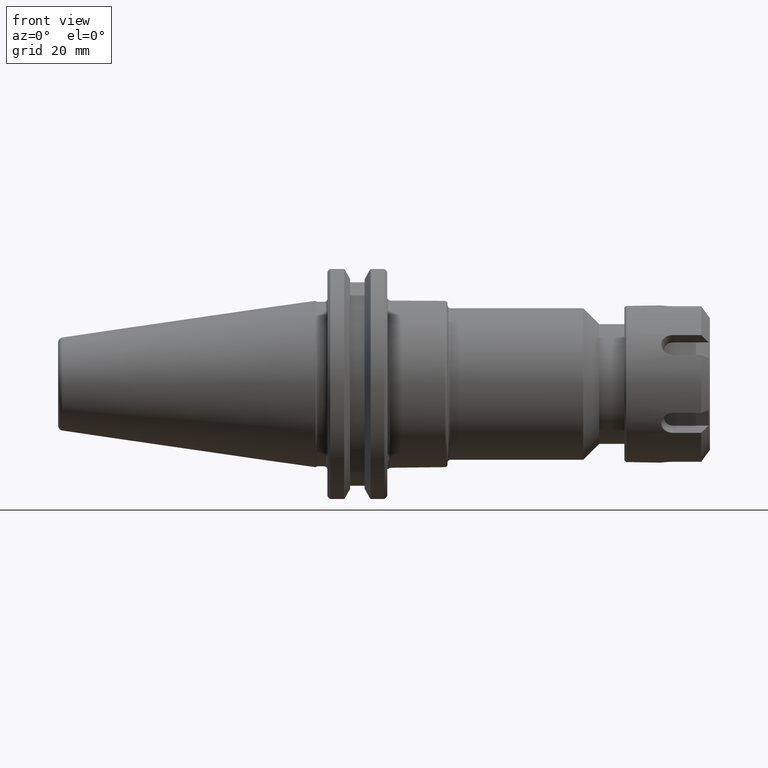
[diagram: clean part render]
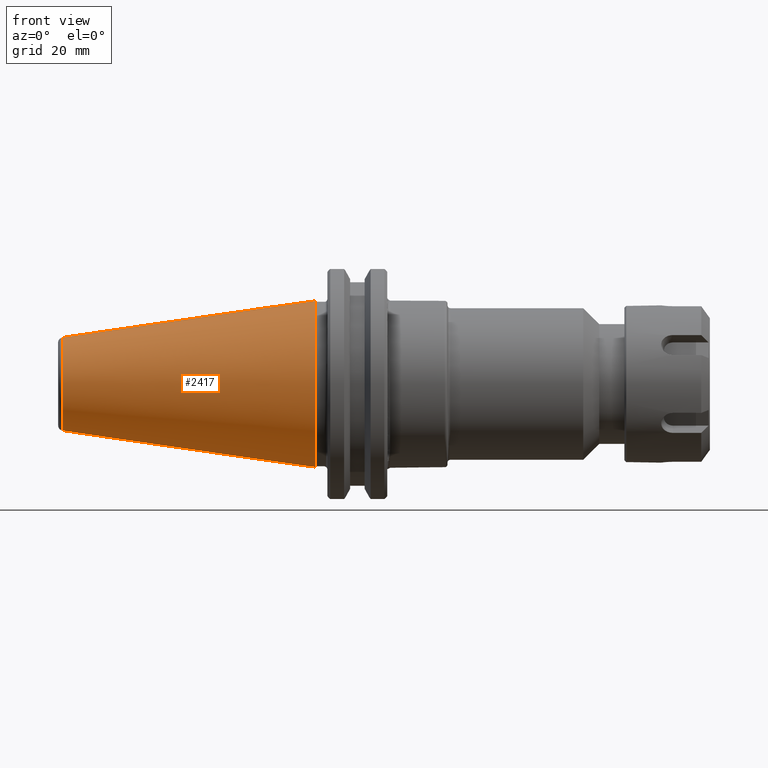
[diagram: same view with one face highlighted and labeled with its STEP entity id]
A machine part, front view. The second image highlights one B-rep face of the part: STEP entity #2417.
In plain terms, the highlighted conical surface has half-angle 8.297 deg.
Its self-contained STEP definition (entity closure, byte-faithful):
#874=CARTESIAN_POINT('',(0.0,0.875,0.0));
#875=VERTEX_POINT('',#874);
#876=CARTESIAN_POINT('',(0.0,0.0,0.0));
#877=DIRECTION('',(1.0,1.624514E-013,0.0));
#878=DIRECTION('',(-1.624514E-013,1.0,0.0));
#879=AXIS2_PLACEMENT_3D('',#876,#877,#878);
#880=CIRCLE('',#879,0.875);
#881=EDGE_CURVE('',#875,#875,#880,.T.);
#2382=CARTESIAN_POINT('',(-2.641292437025116,0.489818344728471,-1.199709E-016));
#2383=VERTEX_POINT('',#2382);
#2384=CARTESIAN_POINT('',(-2.641292437025114,1.136449E-014,-5.998545E-017));
#2385=DIRECTION('',(-1.0,0.0,0.0));
#2386=DIRECTION('',(0.0,-1.0,0.0));
#2387=AXIS2_PLACEMENT_3D('',#2384,#2385,#2386);
#2388=CIRCLE('',#2387,0.48981834472846);
#2389=EDGE_CURVE('',#2383,#2383,#2388,.T.);
#2406=CARTESIAN_POINT('',(-1.34375,0.0,0.0));
#2407=DIRECTION('',(1.0,0.0,0.0));
#2408=DIRECTION('',(-1.624514E-013,1.0,0.0));
#2409=AXIS2_PLACEMENT_3D('',#2406,#2407,#2408);
#2410=CONICAL_SURFACE('',#2409,0.67903993059773,8.296999999999994);
#2411=ORIENTED_EDGE('',*,*,#881,.F.);
#2412=EDGE_LOOP('',(#2411));
#2413=FACE_OUTER_BOUND('',#2412,.T.);
#2414=ORIENTED_EDGE('',*,*,#2389,.F.);
#2415=EDGE_LOOP('',(#2414));
#2416=FACE_BOUND('',#2415,.T.);
#2417=ADVANCED_FACE('',(#2413,#2416),#2410,.T.);